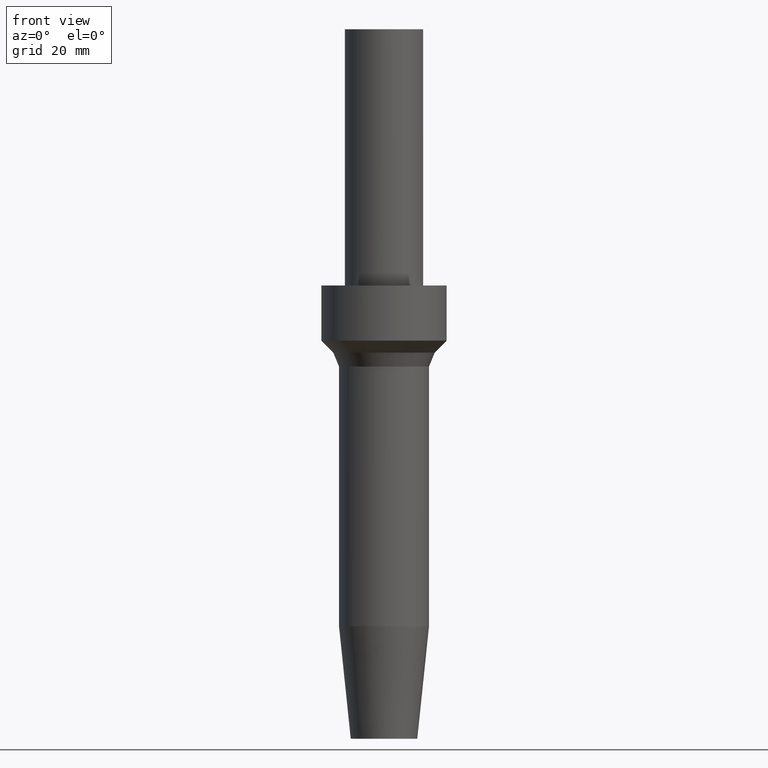
[diagram: clean part render]
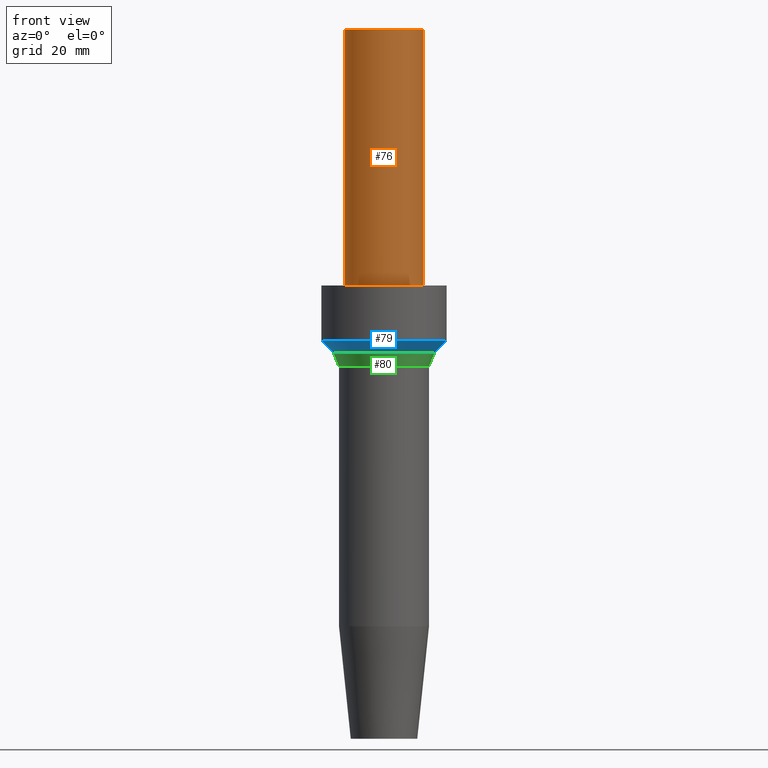
[diagram: same view with three faces highlighted in distinct colors, each labeled with its STEP entity id]
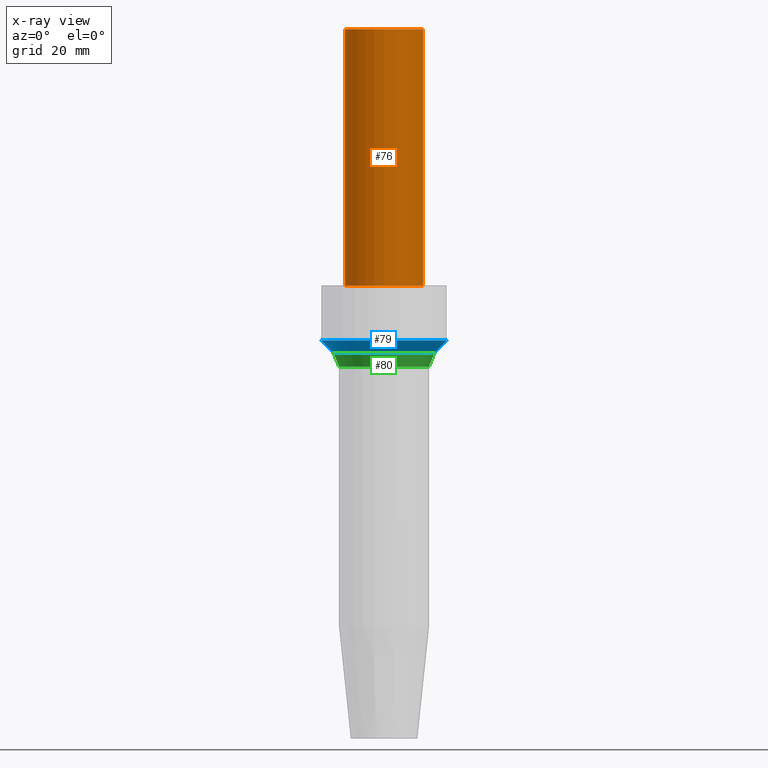
[diagram: x-ray of the same camera — body ghosted, the three highlighted faces saturated]
A machine part, front view with three faces highlighted in distinct colors.
The next image is the same camera in x-ray (body ghosted, the three faces saturated) — at least one of them is partly hidden behind the body in this view.
Their STEP definitions:

[orange] entity #76 — the highlighted cylindrical surface (bore or boss wall) has radius 10 mm, axis along (-0, 0, 1).
#76=ADVANCED_FACE('',(#87,#88),#89,.T.);
#87=FACE_BOUND('',#112,.T.);
#88=FACE_BOUND('',#113,.T.);
#89=CYLINDRICAL_SURFACE('',#114,10.0000000004299);
#112=EDGE_LOOP('',(#139));
#113=EDGE_LOOP('',(#140));
#114=AXIS2_PLACEMENT_3D('',#141,#142,#143);
#139=ORIENTED_EDGE('',*,*,#179,.F.);
#140=ORIENTED_EDGE('',*,*,#178,.T.);
#141=CARTESIAN_POINT('',(-9.03177014371211E-015,1.64611849873022E-014,147.500000000006));
#142=DIRECTION('',(-6.12323399573677E-017,1.11601254151197E-016,1.0));
#143=DIRECTION('',(2.00645320308564E-033,1.0,-1.11601254151197E-016));
#178=EDGE_CURVE('',#186,#186,#187,.T.);
#179=EDGE_CURVE('',#188,#188,#189,.T.);
#186=VERTEX_POINT('',#202);
#187=CIRCLE('',#203,10.0000000004298);
#188=VERTEX_POINT('',#204);
#189=CIRCLE('',#205,10.0000000004299);
#202=CARTESIAN_POINT('',(-1.10218211923265E-014,10.0000000004298,180.000000000006));
#203=AXIS2_PLACEMENT_3D('',#218,#219,#220);
#204=CARTESIAN_POINT('',(-7.04171909509768E-015,10.0000000004299,115.000000000007));
#205=AXIS2_PLACEMENT_3D('',#221,#222,#223);
#218=CARTESIAN_POINT('',(-1.10218211923265E-014,2.00882257472161E-014,180.000000000006));
#219=DIRECTION('',(6.12323399573677E-017,-1.11601254151197E-016,-1.0));
#220=DIRECTION('',(2.00645320308564E-033,1.0,-1.11601254151197E-016));
#221=CARTESIAN_POINT('',(-7.04171909509768E-015,1.28341442273884E-014,115.000000000007));
#222=DIRECTION('',(6.12323399573677E-017,-1.11601254151197E-016,-1.0));
#223=DIRECTION('',(2.00645320308564E-033,1.0,-1.11601254151197E-016));

[blue] entity #79 — the highlighted conical surface has half-angle 45 deg.
#79=ADVANCED_FACE('',(#96,#97),#98,.T.);
#96=FACE_BOUND('',#121,.T.);
#97=FACE_BOUND('',#122,.T.);
#98=CONICAL_SURFACE('',#123,14.482233047034,0.785398163397401);
#121=EDGE_LOOP('',(#154));
#122=EDGE_LOOP('',(#155));
#123=AXIS2_PLACEMENT_3D('',#156,#157,#158);
#154=ORIENTED_EDGE('',*,*,#182,.F.);
#155=ORIENTED_EDGE('',*,*,#181,.T.);
#156=CARTESIAN_POINT('',(-6.09152991365446E-015,1.11023419738114E-014,99.4822330470406));
#157=DIRECTION('',(-6.12323399573677E-017,1.11601254151197E-016,1.0));
#158=DIRECTION('',(2.00645320308564E-033,1.0,-1.11601254151197E-016));
#181=EDGE_CURVE('',#192,#192,#193,.T.);
#182=EDGE_CURVE('',#194,#194,#195,.T.);
#192=VERTEX_POINT('',#208);
#193=CIRCLE('',#209,16.0000000000005);
#194=VERTEX_POINT('',#210);
#195=CIRCLE('',#211,12.9644660940675);
#208=CARTESIAN_POINT('',(-6.18446633569457E-015,16.0000000000005,101.000000000007));
#209=AXIS2_PLACEMENT_3D('',#227,#228,#229);
#210=CARTESIAN_POINT('',(-5.99859349161435E-015,12.9644660940675,97.9644660940739));
#211=AXIS2_PLACEMENT_3D('',#230,#231,#232);
#227=CARTESIAN_POINT('',(-6.18446633569457E-015,1.12717266692717E-014,101.000000000007));
#228=DIRECTION('',(6.12323399573677E-017,-1.11601254151197E-016,-1.0));
#229=DIRECTION('',(2.00645320308564E-033,1.0,-1.11601254151197E-016));
#230=CARTESIAN_POINT('',(-5.99859349161435E-015,1.0932957278351E-014,97.9644660940739));
#231=DIRECTION('',(6.12323399573677E-017,-1.11601254151197E-016,-1.0));
#232=DIRECTION('',(2.00645320308564E-033,1.0,-1.11601254151197E-016));

[green] entity #80 — the highlighted conical surface has half-angle 22.5 deg.
#80=ADVANCED_FACE('',(#99,#100),#101,.T.);
#99=FACE_BOUND('',#124,.T.);
#100=FACE_BOUND('',#125,.T.);
#101=CONICAL_SURFACE('',#126,12.232233047034,0.392699081698699);
#124=EDGE_LOOP('',(#159));
#125=EDGE_LOOP('',(#160));
#126=AXIS2_PLACEMENT_3D('',#161,#162,#163);
#159=ORIENTED_EDGE('',*,*,#183,.F.);
#160=ORIENTED_EDGE('',*,*,#182,.T.);
#161=CARTESIAN_POINT('',(-5.89034898458492E-015,1.07356722693529E-014,96.1966991411076));
#162=DIRECTION('',(-6.12323399573677E-017,1.11601254151197E-016,1.0));
#163=DIRECTION('',(2.00645320308564E-033,1.0,-1.11601254151197E-016));
#182=EDGE_CURVE('',#194,#194,#195,.T.);
#183=EDGE_CURVE('',#196,#196,#197,.T.);
#194=VERTEX_POINT('',#210);
#195=CIRCLE('',#211,12.9644660940675);
#196=VERTEX_POINT('',#212);
#197=CIRCLE('',#213,11.5000000000004);
#210=CARTESIAN_POINT('',(-5.99859349161435E-015,12.9644660940675,97.9644660940739));
#211=AXIS2_PLACEMENT_3D('',#230,#231,#232);
#212=CARTESIAN_POINT('',(-5.78210447755549E-015,11.5000000000004,94.4289321881413));
#213=AXIS2_PLACEMENT_3D('',#233,#234,#235);
#230=CARTESIAN_POINT('',(-5.99859349161435E-015,1.0932957278351E-014,97.9644660940739));
#231=DIRECTION('',(6.12323399573677E-017,-1.11601254151197E-016,-1.0));
#232=DIRECTION('',(2.00645320308564E-033,1.0,-1.11601254151197E-016));
#233=CARTESIAN_POINT('',(-5.78210447755549E-015,1.05383872603549E-014,94.4289321881413));
#234=DIRECTION('',(6.12323399573677E-017,-1.11601254151197E-016,-1.0));
#235=DIRECTION('',(2.00645320308564E-033,1.0,-1.11601254151197E-016));